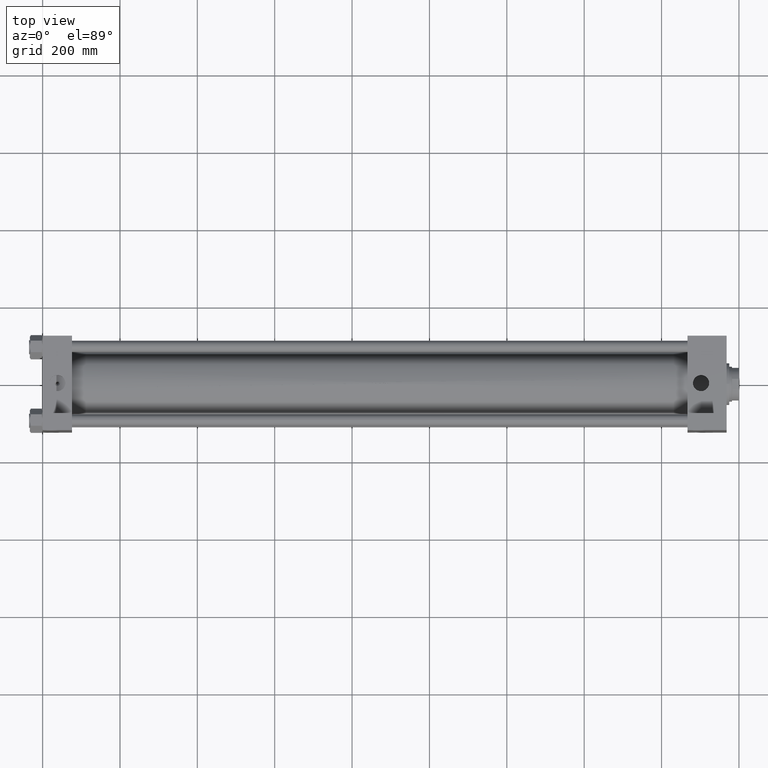
[diagram: clean part render]
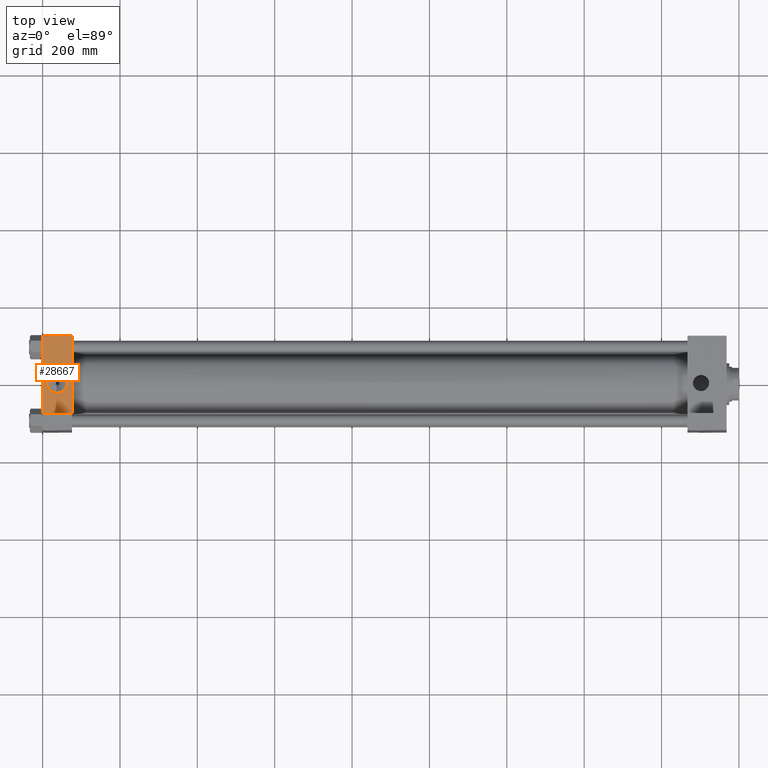
[diagram: same view with one face highlighted and labeled with its STEP entity id]
A machine part, top view. The second image highlights one B-rep face of the part: STEP entity #28667.
In plain terms, the highlighted planar face has unit normal (0, -0, -1).
Its self-contained STEP definition (entity closure, byte-faithful):
#683 = LINE ( 'NONE', #26273, #24179 ) ;
#3353 = CARTESIAN_POINT ( 'NONE',  ( 0.000000000000000000, -122.4999999999999716, 122.0000000000001137 ) ) ;
#3397 = AXIS2_PLACEMENT_3D ( 'NONE', #27992, #46728, #13852 ) ;
#4732 = CARTESIAN_POINT ( 'NONE',  ( -2.449293598294710063E-15, -122.5000000000000000, -78.50000000000001421 ) ) ;
#4769 = DIRECTION ( 'NONE',  ( 0.000000000000000000, -1.132880637372608493E-16, -1.000000000000000000 ) ) ;
#4983 = DIRECTION ( 'NONE',  ( -1.000000000000000000, 1.826024711554534160E-16, 0.000000000000000000 ) ) ;
#6977 = EDGE_CURVE ( 'NONE', #31451, #9431, #13015, .T. ) ;
#7501 = LINE ( 'NONE', #22377, #21987 ) ;
#7870 = AXIS2_PLACEMENT_3D ( 'NONE', #40925, #22443, #32684 ) ;
#8360 = CARTESIAN_POINT ( 'NONE',  ( 38.00000000000000000, -122.4999999999999858, 26.00000000000002132 ) ) ;
#9431 = VERTEX_POINT ( 'NONE', #10130 ) ;
#9680 = CARTESIAN_POINT ( 'NONE',  ( 76.00000000000000000, -122.5000000000000000, -78.50000000000001421 ) ) ;
#9760 = VECTOR ( 'NONE', #4769, 1000.000000000000000 ) ;
#10130 = CARTESIAN_POINT ( 'NONE',  ( -2.449293598294709274E-15, -122.4999999999999858, -78.50000000000001421 ) ) ;
#11235 = PLANE ( 'NONE',  #7870 ) ;
#12312 = AXIS2_PLACEMENT_3D ( 'NONE', #21285, #32712, #47317 ) ;
#13015 = LINE ( 'NONE', #4732, #16502 ) ;
#13330 = DIRECTION ( 'NONE',  ( 0.000000000000000000, -1.132880637372608493E-16, -1.000000000000000000 ) ) ;
#13699 = CARTESIAN_POINT ( 'NONE',  ( 76.00000000000000000, -122.4999999999999716, 122.0000000000001137 ) ) ;
#13852 = DIRECTION ( 'NONE',  ( 0.000000000000000000, 0.000000000000000000, -1.000000000000000000 ) ) ;
#14735 = ORIENTED_EDGE ( 'NONE', *, *, #38157, .F. ) ;
#16502 = VECTOR ( 'NONE', #4983, 1000.000000000000000 ) ;
#18631 = EDGE_LOOP ( 'NONE', ( #22505, #29793 ) ) ;
#19168 = ORIENTED_EDGE ( 'NONE', *, *, #6977, .F. ) ;
#20726 = VERTEX_POINT ( 'NONE', #21084 ) ;
#21084 = CARTESIAN_POINT ( 'NONE',  ( 38.00000000000000000, -122.4999999999999858, -25.99999999999999645 ) ) ;
#21285 = CARTESIAN_POINT ( 'NONE',  ( 38.00000000000000000, -122.4999999999999858, 1.387778780781445044E-14 ) ) ;
#21987 = VECTOR ( 'NONE', #13330, 1000.000000000000000 ) ;
#22280 = EDGE_CURVE ( 'NONE', #40286, #25237, #683, .T. ) ;
#22377 = CARTESIAN_POINT ( 'NONE',  ( 0.000000000000000000, -122.4999999999999716, 122.5000000000000000 ) ) ;
#22443 = DIRECTION ( 'NONE',  ( 0.000000000000000000, 1.000000000000000000, -1.132880637372608493E-16 ) ) ;
#22505 = ORIENTED_EDGE ( 'NONE', *, *, #34168, .F. ) ;
#24179 = VECTOR ( 'NONE', #30418, 1000.000000000000000 ) ;
#25237 = VERTEX_POINT ( 'NONE', #3353 ) ;
#26273 = CARTESIAN_POINT ( 'NONE',  ( 76.00000000000000000, -122.4999999999999716, 122.0000000000001137 ) ) ;
#26962 = CARTESIAN_POINT ( 'NONE',  ( 76.00000000000000000, -122.4999999999999716, 122.5000000000000000 ) ) ;
#27992 = CARTESIAN_POINT ( 'NONE',  ( 38.00000000000000000, -122.4999999999999858, 1.387778780781445044E-14 ) ) ;
#28667 = ADVANCED_FACE ( 'NONE', ( #33388, #44581 ), #11235, .F. ) ;
#29078 = CIRCLE ( 'NONE', #3397, 26.00000000000001066 ) ;
#29793 = ORIENTED_EDGE ( 'NONE', *, *, #46028, .F. ) ;
#30418 = DIRECTION ( 'NONE',  ( -1.000000000000000000, 0.000000000000000000, 0.000000000000000000 ) ) ;
#30466 = EDGE_CURVE ( 'NONE', #25237, #9431, #7501, .T. ) ;
#31451 = VERTEX_POINT ( 'NONE', #9680 ) ;
#32684 = DIRECTION ( 'NONE',  ( 0.000000000000000000, 1.132880637372608493E-16, 1.000000000000000000 ) ) ;
#32712 = DIRECTION ( 'NONE',  ( 0.000000000000000000, -1.000000000000000000, -8.673617379884036705E-17 ) ) ;
#33388 = FACE_BOUND ( 'NONE', #18631, .T. ) ;
#33705 = EDGE_LOOP ( 'NONE', ( #19168, #14735, #46239, #39146 ) ) ;
#34168 = EDGE_CURVE ( 'NONE', #20726, #36310, #29078, .T. ) ;
#34484 = LINE ( 'NONE', #26962, #9760 ) ;
#36310 = VERTEX_POINT ( 'NONE', #8360 ) ;
#38157 = EDGE_CURVE ( 'NONE', #40286, #31451, #34484, .T. ) ;
#39146 = ORIENTED_EDGE ( 'NONE', *, *, #30466, .T. ) ;
#40286 = VERTEX_POINT ( 'NONE', #13699 ) ;
#40925 = CARTESIAN_POINT ( 'NONE',  ( 76.00000000000000000, -122.4999999999999716, 122.5000000000000000 ) ) ;
#44581 = FACE_OUTER_BOUND ( 'NONE', #33705, .T. ) ;
#46028 = EDGE_CURVE ( 'NONE', #36310, #20726, #47316, .T. ) ;
#46239 = ORIENTED_EDGE ( 'NONE', *, *, #22280, .T. ) ;
#46728 = DIRECTION ( 'NONE',  ( 0.000000000000000000, -1.000000000000000000, -8.673617379884036705E-17 ) ) ;
#47316 = CIRCLE ( 'NONE', #12312, 26.00000000000001066 ) ;
#47317 = DIRECTION ( 'NONE',  ( 0.000000000000000000, 0.000000000000000000, -1.000000000000000000 ) ) ;